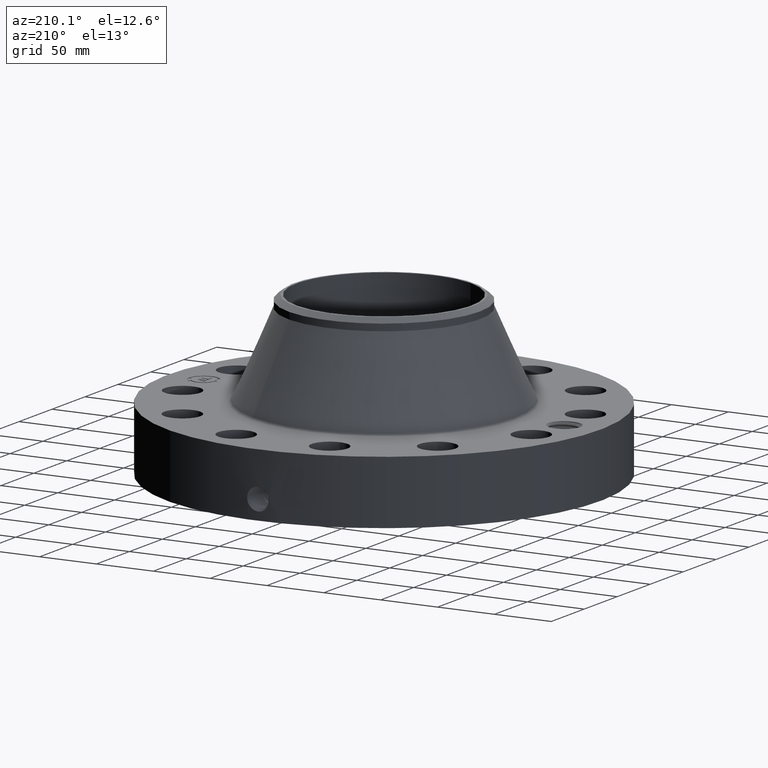
[diagram: clean part render]
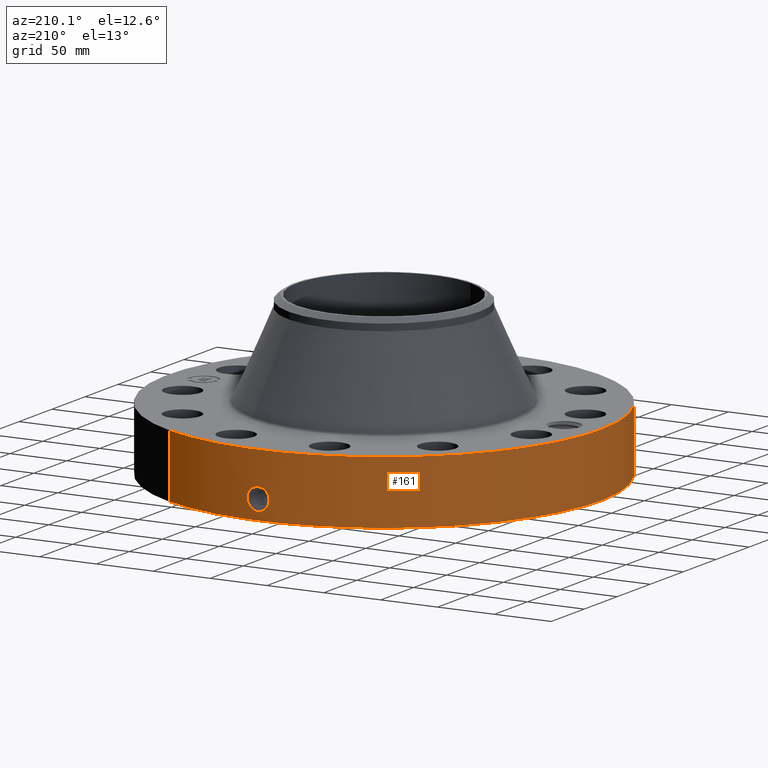
[diagram: same view with one face highlighted and labeled with its STEP entity id]
A machine part, auxiliary view. The second image highlights one B-rep face of the part: STEP entity #161.
In plain terms, the highlighted cylindrical surface (partial cylindrical patch) has radius 190.5 mm, axis along (0, 0, -1).
Its self-contained STEP definition (entity closure, byte-faithful):
#38=AXIS2_PLACEMENT_3D('Cylinder Axis2P3D',#35,#36,#37) ;
#42=AXIS2_PLACEMENT_3D('Circle Axis2P3D',#40,#41,$) ;
#58=AXIS2_PLACEMENT_3D('Circle Axis2P3D',#56,#57,$) ;
#35=CARTESIAN_POINT('Axis2P3D Location',(0.,0.,3.00000000001)) ;
#40=CARTESIAN_POINT('Axis2P3D Location',(0.,0.,0.250000000001)) ;
#44=CARTESIAN_POINT('Vertex',(-3.59569153955,-6.5818692142,0.250000000001)) ;
#46=CARTESIAN_POINT('Vertex',(3.59569153955,6.5818692142,0.250000000001)) ;
#49=CARTESIAN_POINT('Line Origine',(-3.59569153955,-6.5818692142,1.34500000001)) ;
#53=CARTESIAN_POINT('Vertex',(-3.59569153955,-6.5818692142,2.44000000001)) ;
#56=CARTESIAN_POINT('Axis2P3D Location',(0.,0.,2.44000000001)) ;
#60=CARTESIAN_POINT('Vertex',(3.59569153955,6.5818692142,2.44000000001)) ;
#63=CARTESIAN_POINT('Line Origine',(3.59569153955,6.5818692142,1.34500000001)) ;
#75=CARTESIAN_POINT('Control Point',(-0.0594137259709,7.49976466362,1.28909172961)) ;
#76=CARTESIAN_POINT('Control Point',(-0.0400334611876,7.4999181956,1.29239510268)) ;
#77=CARTESIAN_POINT('Control Point',(-0.0203766834704,7.49999808791,1.29407863473)) ;
#78=CARTESIAN_POINT('Control Point',(-0.000716383544895,7.49999996582,1.2941184985)) ;
#79=CARTESIAN_POINT('Vertex',(-0.0593978658735,7.49976505881,1.28909472339)) ;
#81=CARTESIAN_POINT('Vertex',(-0.000716239285677,7.49999996583,1.29411850892)) ;
#85=CARTESIAN_POINT('Control Point',(-0.0593977563656,7.49976479011,1.28909412322)) ;
#86=CARTESIAN_POINT('Control Point',(-0.098308903003,7.49945661581,1.28408813024)) ;
#87=CARTESIAN_POINT('Control Point',(-0.136423640249,7.49884067125,1.27199856152)) ;
#88=CARTESIAN_POINT('Control Point',(-0.171383379675,7.49804159348,1.25374697693)) ;
#89=CARTESIAN_POINT('Vertex',(-0.171383379675,7.49804159348,1.25374697693)) ;
#93=CARTESIAN_POINT('Control Point',(-0.0299928703553,7.49994002831,0.531113901522)) ;
#94=CARTESIAN_POINT('Control Point',(-0.0859755500012,7.49971614901,0.538246911015)) ;
#95=CARTESIAN_POINT('Control Point',(-0.140353669118,7.49897633056,0.555868368184)) ;
#96=CARTESIAN_POINT('Control Point',(-0.190341098162,7.49778993886,0.583444711189)) ;
#97=CARTESIAN_POINT('Control Point',(-0.279604144514,7.49501967955,0.656390974062)) ;
#98=CARTESIAN_POINT('Control Point',(-0.337036176646,7.49248678889,0.754528685165)) ;
#99=CARTESIAN_POINT('Control Point',(-0.356841453142,7.49151237741,0.809126486043)) ;
#100=CARTESIAN_POINT('Control Point',(-0.372324294013,7.49075487622,0.898434608456)) ;
#101=CARTESIAN_POINT('Control Point',(-0.363000414414,7.49121104907,0.986917985845)) ;
#102=CARTESIAN_POINT('Control Point',(-0.35624872469,7.49154134033,1.01886311055)) ;
#103=CARTESIAN_POINT('Control Point',(-0.331184222195,7.49272778142,1.0963889549)) ;
#104=CARTESIAN_POINT('Control Point',(-0.286591694843,7.49460191764,1.16492842725)) ;
#105=CARTESIAN_POINT('Control Point',(-0.253241538277,7.49586399255,1.20135983056)) ;
#106=CARTESIAN_POINT('Control Point',(-0.214254481647,7.49706168503,1.23136507305)) ;
#107=CARTESIAN_POINT('Control Point',(-0.171383379675,7.49804159348,1.25374697693)) ;
#108=CARTESIAN_POINT('Vertex',(-0.0299928703553,7.49994002831,0.531113901522)) ;
#112=CARTESIAN_POINT('Control Point',(-0.0299928703553,7.49994002831,0.531113901522)) ;
#113=CARTESIAN_POINT('Control Point',(-0.0199890959274,7.49998003421,0.530863904945)) ;
#114=CARTESIAN_POINT('Control Point',(-0.00998114713444,7.50000000366,0.530950970166)) ;
#115=CARTESIAN_POINT('Control Point',(2.72878354259E-006,7.50000000003,0.531374667805)) ;
#116=CARTESIAN_POINT('Vertex',(2.72878353953E-006,7.50000000003,0.531374667805)) ;
#120=CARTESIAN_POINT('Control Point',(0.193541975774,7.49750235105,0.585733331631)) ;
#121=CARTESIAN_POINT('Control Point',(0.149360726134,7.49864285438,0.561061341142)) ;
#122=CARTESIAN_POINT('Control Point',(0.101191581536,7.49953989179,0.543441172955)) ;
#123=CARTESIAN_POINT('Control Point',(0.0508341801368,7.49999998154,0.533531864545)) ;
#124=CARTESIAN_POINT('Control Point',(2.72878351595E-006,7.50000000003,0.531374667805)) ;
#125=CARTESIAN_POINT('Vertex',(0.193541975774,7.49750235105,0.585733331631)) ;
#129=CARTESIAN_POINT('Control Point',(0.193541975774,7.49750235105,0.585733331631)) ;
#130=CARTESIAN_POINT('Control Point',(0.222748753783,7.49674840164,0.602043176003)) ;
#131=CARTESIAN_POINT('Control Point',(0.250325996268,7.49589420259,0.621241151331)) ;
#132=CARTESIAN_POINT('Control Point',(0.275868508301,7.49498170333,0.643170416853)) ;
#133=CARTESIAN_POINT('Control Point',(0.343186229481,7.49231400032,0.714369693959)) ;
#134=CARTESIAN_POINT('Control Point',(0.386533275479,7.49008386143,0.803767622233)) ;
#135=CARTESIAN_POINT('Control Point',(0.402018382985,7.48920041983,0.86797889226)) ;
#136=CARTESIAN_POINT('Control Point',(0.40343666211,7.48917299839,0.982126805759)) ;
#137=CARTESIAN_POINT('Control Point',(0.363754558603,7.49120560421,1.08679717925)) ;
#138=CARTESIAN_POINT('Control Point',(0.339669174694,7.49238294483,1.12822901715)) ;
#139=CARTESIAN_POINT('Control Point',(0.270518791674,7.49538151176,1.21297802921)) ;
#140=CARTESIAN_POINT('Control Point',(0.177019565081,7.49821402042,1.26827158738)) ;
#141=CARTESIAN_POINT('Control Point',(0.11904509655,7.49941832126,1.2884738122)) ;
#142=CARTESIAN_POINT('Control Point',(0.059071819825,7.50000020374,1.29705030864)) ;
#143=CARTESIAN_POINT('Control Point',(-2.5857935556E-005,7.49999999999,1.29415298433)) ;
#144=CARTESIAN_POINT('Vertex',(-2.58579355337E-005,7.49999999999,1.29415298433)) ;
#148=CARTESIAN_POINT('Control Point',(-0.000716239275226,7.49999996583,1.2941185089)) ;
#149=CARTESIAN_POINT('Control Point',(-0.000371072466109,7.49999999879,1.29413605985)) ;
#150=CARTESIAN_POINT('Control Point',(-2.58579416642E-005,7.49999999999,1.29415298433)) ;
#36=DIRECTION('Axis2P3D Direction',(0.,0.,-0.0393700787402)) ;
#37=DIRECTION('Axis2P3D XDirection',(0.0188750212049,0.0345504945626,0.)) ;
#41=DIRECTION('Axis2P3D Direction',(0.,0.,-0.0393700787402)) ;
#50=DIRECTION('Vector Direction',(0.,0.,-0.0393700787402)) ;
#57=DIRECTION('Axis2P3D Direction',(0.,0.,-0.0393700787402)) ;
#64=DIRECTION('Vector Direction',(0.,0.,-0.0393700787402)) ;
#51=VECTOR('Line Direction',#50,0.0393700787402) ;
#65=VECTOR('Line Direction',#64,0.0393700787402) ;
#69=ORIENTED_EDGE('',*,*,#48,.F.) ;
#70=ORIENTED_EDGE('',*,*,#55,.T.) ;
#71=ORIENTED_EDGE('',*,*,#62,.T.) ;
#72=ORIENTED_EDGE('',*,*,#67,.F.) ;
#153=ORIENTED_EDGE('',*,*,#83,.F.) ;
#154=ORIENTED_EDGE('',*,*,#91,.T.) ;
#155=ORIENTED_EDGE('',*,*,#110,.F.) ;
#156=ORIENTED_EDGE('',*,*,#118,.T.) ;
#157=ORIENTED_EDGE('',*,*,#127,.F.) ;
#158=ORIENTED_EDGE('',*,*,#146,.T.) ;
#159=ORIENTED_EDGE('',*,*,#151,.F.) ;
#160=FACE_BOUND('',#152,.T.) ;
#161=ADVANCED_FACE('PartBody',(#73,#160),#39,.T.) ;
#74=B_SPLINE_CURVE_WITH_KNOTS('',3,(#75,#76,#77,#78),.UNSPECIFIED.,.F.,.U.,(4,4),(4.34032454583,6.52145692543),.UNSPECIFIED.) ;
#84=B_SPLINE_CURVE_WITH_KNOTS('',3,(#85,#86,#87,#88),.UNSPECIFIED.,.F.,.U.,(4,4),(0.,4.40810490601),.UNSPECIFIED.) ;
#92=B_SPLINE_CURVE_WITH_KNOTS('',5,(#93,#94,#95,#96,#97,#98,#99,#100,#101,#102,#103,#104,#105,#106,#107),.UNSPECIFIED.,.F.,.U.,(6,3,3,3,6),(0.,9.80825588725,20.1286739083,26.1171599748,35.1265861154),.UNSPECIFIED.) ;
#111=B_SPLINE_CURVE_WITH_KNOTS('',3,(#112,#113,#114,#115),.UNSPECIFIED.,.F.,.U.,(4,4),(0.,1.0434317888),.UNSPECIFIED.) ;
#119=B_SPLINE_CURVE_WITH_KNOTS('',4,(#120,#121,#122,#123,#124),.UNSPECIFIED.,.F.,.U.,(5,5),(0.,7.08330816054),.UNSPECIFIED.) ;
#128=B_SPLINE_CURVE_WITH_KNOTS('',5,(#129,#130,#131,#132,#133,#134,#135,#136,#137,#138,#139,#140,#141,#142,#143),.UNSPECIFIED.,.F.,.U.,(6,3,3,3,6),(0.,5.85317888581,17.0650520661,25.4867047194,36.5332857319),.UNSPECIFIED.) ;
#147=B_SPLINE_CURVE_WITH_KNOTS('',2,(#148,#149,#150),.UNSPECIFIED.,.F.,.U.,(3,3),(1.05653395238,1.08234505396),.UNSPECIFIED.) ;
#43=CIRCLE('generated circle',#42,7.50000000003) ;
#59=CIRCLE('generated circle',#58,7.50000000003) ;
#39=CYLINDRICAL_SURFACE('generated cylinder',#38,7.50000000003) ;
#48=EDGE_CURVE('',#45,#47,#43,.T.) ;
#55=EDGE_CURVE('',#45,#54,#52,.F.) ;
#62=EDGE_CURVE('',#54,#61,#59,.T.) ;
#67=EDGE_CURVE('',#47,#61,#66,.F.) ;
#83=EDGE_CURVE('',#80,#82,#74,.T.) ;
#91=EDGE_CURVE('',#80,#90,#84,.T.) ;
#110=EDGE_CURVE('',#109,#90,#92,.T.) ;
#118=EDGE_CURVE('',#109,#117,#111,.T.) ;
#127=EDGE_CURVE('',#126,#117,#119,.T.) ;
#146=EDGE_CURVE('',#126,#145,#128,.T.) ;
#151=EDGE_CURVE('',#82,#145,#147,.T.) ;
#68=EDGE_LOOP('',(#69,#70,#71,#72)) ;
#152=EDGE_LOOP('',(#153,#154,#155,#156,#157,#158,#159)) ;
#73=FACE_OUTER_BOUND('',#68,.T.) ;
#52=LINE('Line',#49,#51) ;
#66=LINE('Line',#63,#65) ;
#45=VERTEX_POINT('',#44) ;
#47=VERTEX_POINT('',#46) ;
#54=VERTEX_POINT('',#53) ;
#61=VERTEX_POINT('',#60) ;
#80=VERTEX_POINT('',#79) ;
#82=VERTEX_POINT('',#81) ;
#90=VERTEX_POINT('',#89) ;
#109=VERTEX_POINT('',#108) ;
#117=VERTEX_POINT('',#116) ;
#126=VERTEX_POINT('',#125) ;
#145=VERTEX_POINT('',#144) ;